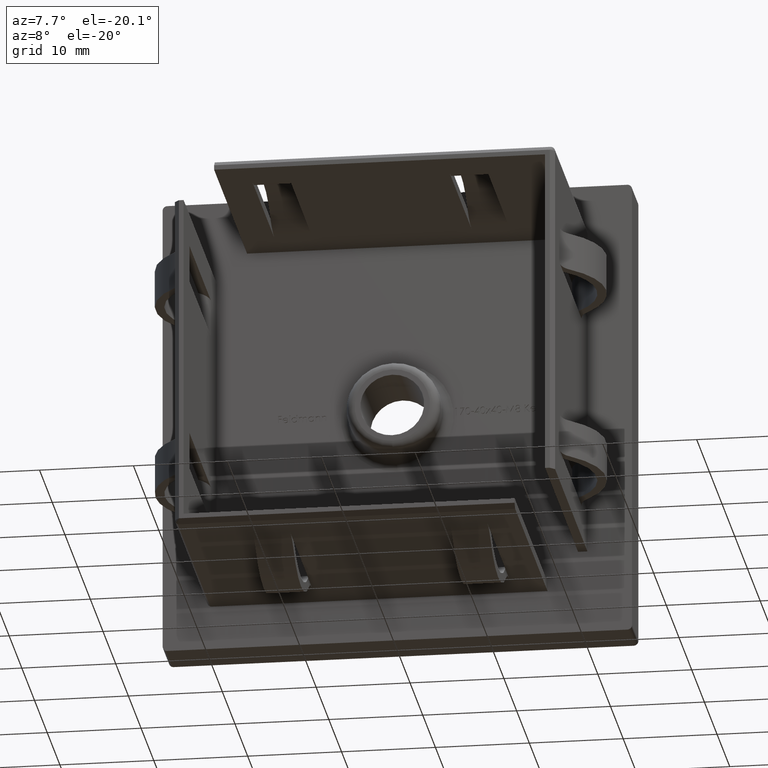
[diagram: clean part render]
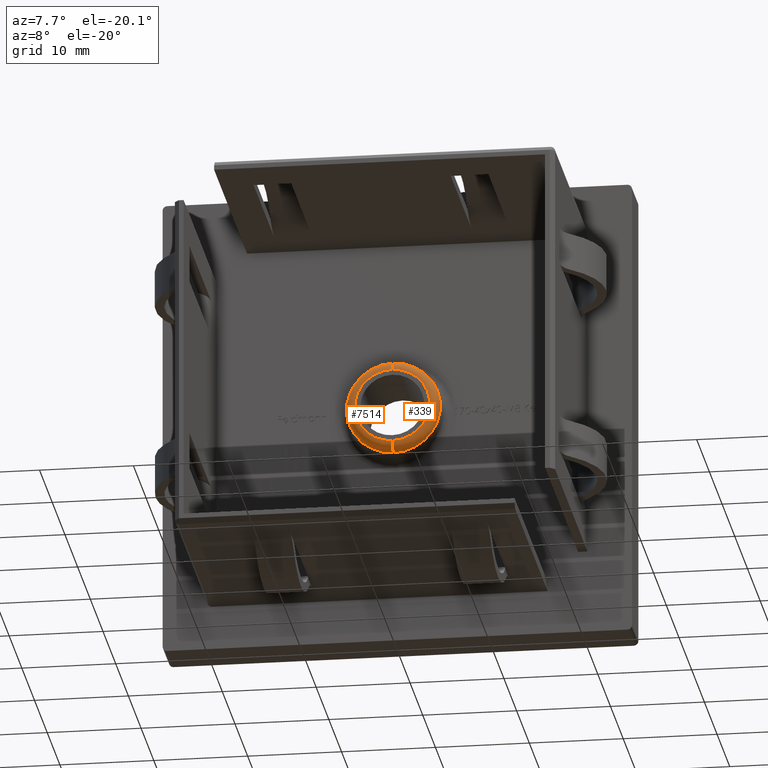
[diagram: same view with one multi-face feature highlighted, each face labeled with its STEP entity id]
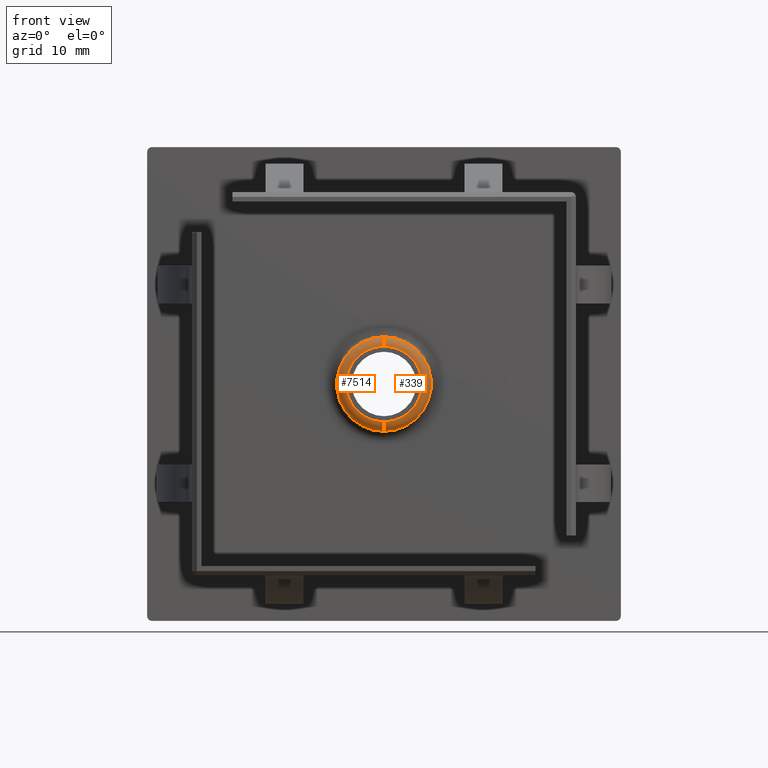
[diagram: same view with one multi-face feature highlighted, each face labeled with its STEP entity id]
A machine part, auxiliary view. The highlighted faces form ONE feature: a constant-radius fillet chain: 2 tangent blend faces with common blend radius 1 mm. The faces share edges in the B-rep.
A second angle (front view) of the same feature is appended — it is thin or edge-on in the first view.
Their STEP definitions:
[1] entity #7514 (Torus):
#75 = EDGE_LOOP ( 'NONE', ( #5741, #6661, #16576, #14545 ) ) ;
#630 = AXIS2_PLACEMENT_3D ( 'NONE', #2429, #6811, #6560 ) ;
#804 = EDGE_CURVE ( 'NONE', #1372, #10239, #9381, .T. ) ;
#1178 = CIRCLE ( 'NONE', #630, 4.000000000000000000 ) ;
#1372 = VERTEX_POINT ( 'NONE', #13742 ) ;
#2038 = CARTESIAN_POINT ( 'NONE',  ( 6.123233995736766300E-016, -2.999999999999999100, -5.000000000000000000 ) ) ;
#2429 = CARTESIAN_POINT ( 'NONE',  ( 0.0000000000000000000, -3.999999999999999100, 0.0000000000000000000 ) ) ;
#2477 = CARTESIAN_POINT ( 'NONE',  ( 5.510910596163088600E-016, -3.999999999999999100, -4.000000000000000000 ) ) ;
#2737 = DIRECTION ( 'NONE',  ( 0.0000000000000000000, 0.0000000000000000000, 1.000000000000000000 ) ) ;
#2760 = TOROIDAL_SURFACE ( 'NONE', #12553, 4.000000000000000000, 1.000000000000000000 ) ;
#2851 = EDGE_CURVE ( 'NONE', #3355, #14980, #14715, .T. ) ;
#3355 = VERTEX_POINT ( 'NONE', #2477 ) ;
#3462 = DIRECTION ( 'NONE',  ( 0.0000000000000000000, 0.0000000000000000000, 1.000000000000000000 ) ) ;
#4416 = DIRECTION ( 'NONE',  ( 0.0000000000000000000, 1.000000000000000000, 0.0000000000000000000 ) ) ;
#5741 = ORIENTED_EDGE ( 'NONE', *, *, #2851, .F. ) ;
#5967 = AXIS2_PLACEMENT_3D ( 'NONE', #10126, #17185, #2737 ) ;
#6419 = CARTESIAN_POINT ( 'NONE',  ( 0.0000000000000000000, -2.999999999999999100, 5.000000000000000000 ) ) ;
#6560 = DIRECTION ( 'NONE',  ( 0.0000000000000000000, 0.0000000000000000000, 1.000000000000000000 ) ) ;
#6661 = ORIENTED_EDGE ( 'NONE', *, *, #14132, .F. ) ;
#6811 = DIRECTION ( 'NONE',  ( -0.0000000000000000000, -1.000000000000000000, -0.0000000000000000000 ) ) ;
#7514 = ADVANCED_FACE ( 'NONE', ( #17873 ), #2760, .T. ) ;
#9381 = CIRCLE ( 'NONE', #5967, 1.000000000000000000 ) ;
#10104 = DIRECTION ( 'NONE',  ( 0.0000000000000000000, 0.0000000000000000000, 1.000000000000000000 ) ) ;
#10126 = CARTESIAN_POINT ( 'NONE',  ( 0.0000000000000000000, -2.999999999999999100, 4.000000000000000000 ) ) ;
#10239 = VERTEX_POINT ( 'NONE', #6419 ) ;
#10871 = CIRCLE ( 'NONE', #18157, 5.000000000000000000 ) ;
#12496 = AXIS2_PLACEMENT_3D ( 'NONE', #13661, #15127, #16595 ) ;
#12553 = AXIS2_PLACEMENT_3D ( 'NONE', #13045, #4416, #10104 ) ;
#13045 = CARTESIAN_POINT ( 'NONE',  ( 0.0000000000000000000, -2.999999999999999100, 0.0000000000000000000 ) ) ;
#13420 = DIRECTION ( 'NONE',  ( 0.0000000000000000000, 1.000000000000000000, 0.0000000000000000000 ) ) ;
#13661 = CARTESIAN_POINT ( 'NONE',  ( 4.898587196589412800E-016, -2.999999999999999100, -4.000000000000000000 ) ) ;
#13742 = CARTESIAN_POINT ( 'NONE',  ( 0.0000000000000000000, -3.999999999999999100, 4.000000000000000000 ) ) ;
#14132 = EDGE_CURVE ( 'NONE', #1372, #3355, #1178, .T. ) ;
#14252 = EDGE_CURVE ( 'NONE', #14980, #10239, #10871, .T. ) ;
#14545 = ORIENTED_EDGE ( 'NONE', *, *, #14252, .F. ) ;
#14715 = CIRCLE ( 'NONE', #12496, 1.000000000000000000 ) ;
#14980 = VERTEX_POINT ( 'NONE', #2038 ) ;
#15127 = DIRECTION ( 'NONE',  ( 1.000000000000000000, -0.0000000000000000000, 1.224646799147353200E-016 ) ) ;
#16576 = ORIENTED_EDGE ( 'NONE', *, *, #804, .T. ) ;
#16595 = DIRECTION ( 'NONE',  ( 1.224646799147353500E-016, 0.0000000000000000000, -1.000000000000000000 ) ) ;
#16605 = CARTESIAN_POINT ( 'NONE',  ( 0.0000000000000000000, -2.999999999999999100, 0.0000000000000000000 ) ) ;
#17185 = DIRECTION ( 'NONE',  ( -1.000000000000000000, 0.0000000000000000000, 0.0000000000000000000 ) ) ;
#17873 = FACE_OUTER_BOUND ( 'NONE', #75, .T. ) ;
#18157 = AXIS2_PLACEMENT_3D ( 'NONE', #16605, #13420, #3462 ) ;
[2] entity #339 (Torus):
#339 = ADVANCED_FACE ( 'NONE', ( #4428 ), #14803, .T. ) ;
#804 = EDGE_CURVE ( 'NONE', #1372, #10239, #9381, .T. ) ;
#1372 = VERTEX_POINT ( 'NONE', #13742 ) ;
#1448 = DIRECTION ( 'NONE',  ( -0.0000000000000000000, -1.000000000000000000, -0.0000000000000000000 ) ) ;
#1689 = DIRECTION ( 'NONE',  ( 0.0000000000000000000, 0.0000000000000000000, 1.000000000000000000 ) ) ;
#1825 = CIRCLE ( 'NONE', #14912, 5.000000000000000000 ) ;
#1960 = AXIS2_PLACEMENT_3D ( 'NONE', #17282, #1448, #11529 ) ;
#2038 = CARTESIAN_POINT ( 'NONE',  ( 6.123233995736766300E-016, -2.999999999999999100, -5.000000000000000000 ) ) ;
#2477 = CARTESIAN_POINT ( 'NONE',  ( 5.510910596163088600E-016, -3.999999999999999100, -4.000000000000000000 ) ) ;
#2683 = AXIS2_PLACEMENT_3D ( 'NONE', #14547, #5807, #1689 ) ;
#2737 = DIRECTION ( 'NONE',  ( 0.0000000000000000000, 0.0000000000000000000, 1.000000000000000000 ) ) ;
#2851 = EDGE_CURVE ( 'NONE', #3355, #14980, #14715, .T. ) ;
#3355 = VERTEX_POINT ( 'NONE', #2477 ) ;
#3804 = EDGE_CURVE ( 'NONE', #10239, #14980, #1825, .T. ) ;
#4250 = ORIENTED_EDGE ( 'NONE', *, *, #3804, .F. ) ;
#4428 = FACE_OUTER_BOUND ( 'NONE', #10297, .T. ) ;
#5807 = DIRECTION ( 'NONE',  ( 0.0000000000000000000, 1.000000000000000000, 0.0000000000000000000 ) ) ;
#5959 = DIRECTION ( 'NONE',  ( 0.0000000000000000000, 1.000000000000000000, 0.0000000000000000000 ) ) ;
#5967 = AXIS2_PLACEMENT_3D ( 'NONE', #10126, #17185, #2737 ) ;
#6419 = CARTESIAN_POINT ( 'NONE',  ( 0.0000000000000000000, -2.999999999999999100, 5.000000000000000000 ) ) ;
#7341 = DIRECTION ( 'NONE',  ( 0.0000000000000000000, 0.0000000000000000000, 1.000000000000000000 ) ) ;
#8434 = ORIENTED_EDGE ( 'NONE', *, *, #804, .F. ) ;
#9381 = CIRCLE ( 'NONE', #5967, 1.000000000000000000 ) ;
#10126 = CARTESIAN_POINT ( 'NONE',  ( 0.0000000000000000000, -2.999999999999999100, 4.000000000000000000 ) ) ;
#10194 = CIRCLE ( 'NONE', #1960, 4.000000000000000000 ) ;
#10239 = VERTEX_POINT ( 'NONE', #6419 ) ;
#10297 = EDGE_LOOP ( 'NONE', ( #11949, #16533, #4250, #8434 ) ) ;
#11529 = DIRECTION ( 'NONE',  ( 0.0000000000000000000, 0.0000000000000000000, 1.000000000000000000 ) ) ;
#11949 = ORIENTED_EDGE ( 'NONE', *, *, #14453, .F. ) ;
#12496 = AXIS2_PLACEMENT_3D ( 'NONE', #13661, #15127, #16595 ) ;
#13661 = CARTESIAN_POINT ( 'NONE',  ( 4.898587196589412800E-016, -2.999999999999999100, -4.000000000000000000 ) ) ;
#13742 = CARTESIAN_POINT ( 'NONE',  ( 0.0000000000000000000, -3.999999999999999100, 4.000000000000000000 ) ) ;
#14453 = EDGE_CURVE ( 'NONE', #3355, #1372, #10194, .T. ) ;
#14507 = CARTESIAN_POINT ( 'NONE',  ( 0.0000000000000000000, -2.999999999999999100, 0.0000000000000000000 ) ) ;
#14547 = CARTESIAN_POINT ( 'NONE',  ( 0.0000000000000000000, -2.999999999999999100, 0.0000000000000000000 ) ) ;
#14715 = CIRCLE ( 'NONE', #12496, 1.000000000000000000 ) ;
#14803 = TOROIDAL_SURFACE ( 'NONE', #2683, 4.000000000000000000, 1.000000000000000000 ) ;
#14912 = AXIS2_PLACEMENT_3D ( 'NONE', #14507, #5959, #7341 ) ;
#14980 = VERTEX_POINT ( 'NONE', #2038 ) ;
#15127 = DIRECTION ( 'NONE',  ( 1.000000000000000000, -0.0000000000000000000, 1.224646799147353200E-016 ) ) ;
#16533 = ORIENTED_EDGE ( 'NONE', *, *, #2851, .T. ) ;
#16595 = DIRECTION ( 'NONE',  ( 1.224646799147353500E-016, 0.0000000000000000000, -1.000000000000000000 ) ) ;
#17185 = DIRECTION ( 'NONE',  ( -1.000000000000000000, 0.0000000000000000000, 0.0000000000000000000 ) ) ;
#17282 = CARTESIAN_POINT ( 'NONE',  ( 0.0000000000000000000, -3.999999999999999100, 0.0000000000000000000 ) ) ;